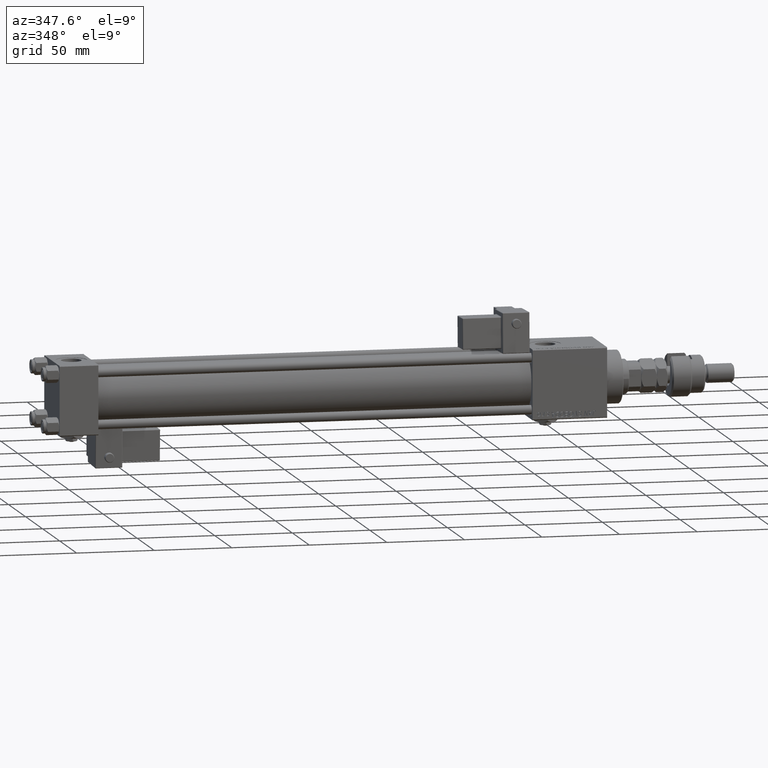
[diagram: clean part render]
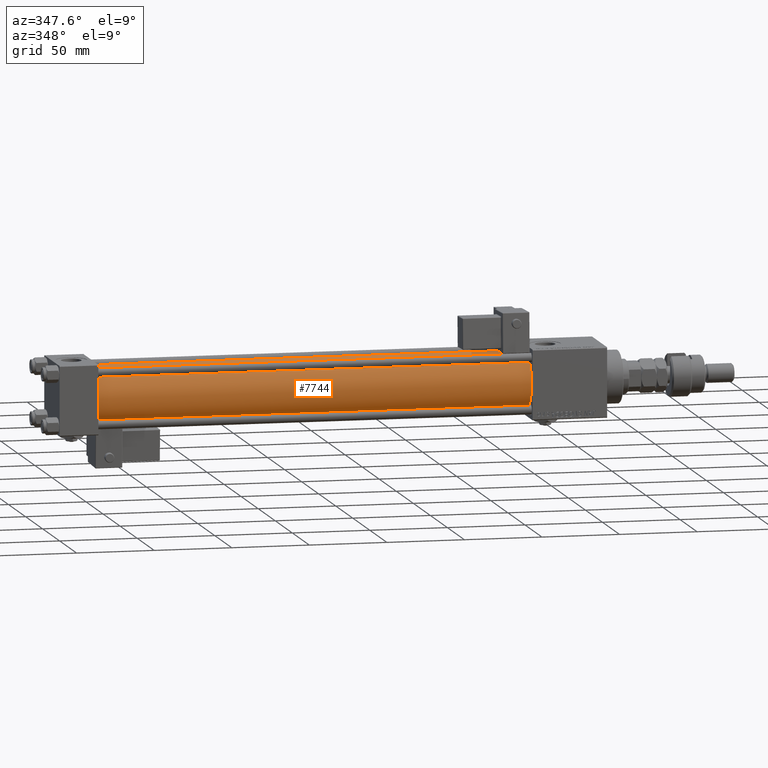
[diagram: same view with one face highlighted and labeled with its STEP entity id]
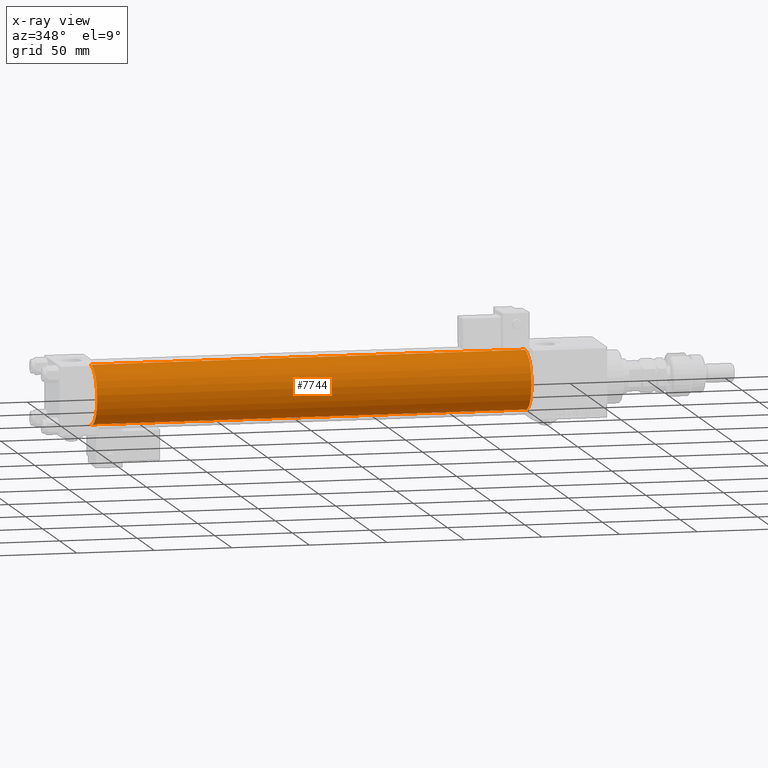
[diagram: x-ray of the same camera — body ghosted, the highlighted face saturated]
A machine part, auxiliary view. The second image highlights one B-rep face of the part: STEP entity #7744.
The next image is the same camera in x-ray: the body ghosted, the highlighted face saturated — about 0% of this face is hidden behind the body in this view.
In plain terms, the highlighted cylindrical surface (edge-blend (fillet) strip) has radius 19 mm, axis along (-1, -0, -0).
Its self-contained STEP definition (entity closure, byte-faithful):
#2431 = CARTESIAN_POINT ( 'NONE',  ( 305.0000000000000568, -2.752562955852396712E-16, -19.00000000000000000 ) ) ;
#2802 = CIRCLE ( 'NONE', #49219, 19.00000000000000000 ) ;
#4915 = ORIENTED_EDGE ( 'NONE', *, *, #40830, .T. ) ;
#5716 = CARTESIAN_POINT ( 'NONE',  ( 25.00000000000002132, -2.752562955852396712E-16, -19.00000000000000000 ) ) ;
#7744 = ADVANCED_FACE ( 'NONE', ( #48055 ), #52984, .T. ) ;
#8480 = DIRECTION ( 'NONE',  ( 0.000000000000000000, 0.000000000000000000, 1.000000000000000000 ) ) ;
#9555 = VECTOR ( 'NONE', #45995, 1000.000000000000000 ) ;
#11617 = VERTEX_POINT ( 'NONE', #5716 ) ;
#14634 = LINE ( 'NONE', #2431, #9555 ) ;
#16632 = CARTESIAN_POINT ( 'NONE',  ( 25.00000000000002132, -2.602085213965210642E-15, 0.000000000000000000 ) ) ;
#18734 = EDGE_CURVE ( 'NONE', #46488, #11617, #2802, .T. ) ;
#20756 = CARTESIAN_POINT ( 'NONE',  ( 305.0000000000000568, -2.602085213965210642E-15, 0.000000000000000000 ) ) ;
#22764 = CARTESIAN_POINT ( 'NONE',  ( 25.00000000000002132, -2.602085213965210642E-15, 19.00000000000000000 ) ) ;
#22905 = VERTEX_POINT ( 'NONE', #37180 ) ;
#23792 = AXIS2_PLACEMENT_3D ( 'NONE', #20756, #38454, #34682 ) ;
#27084 = EDGE_CURVE ( 'NONE', #55387, #11617, #14634, .T. ) ;
#27668 = VECTOR ( 'NONE', #38100, 1000.000000000000000 ) ;
#30965 = ORIENTED_EDGE ( 'NONE', *, *, #41285, .F. ) ;
#31034 = CARTESIAN_POINT ( 'NONE',  ( 305.0000000000000568, -2.602085213965210642E-15, 0.000000000000000000 ) ) ;
#32655 = ORIENTED_EDGE ( 'NONE', *, *, #27084, .F. ) ;
#34342 = DIRECTION ( 'NONE',  ( 1.000000000000000000, -0.000000000000000000, 0.000000000000000000 ) ) ;
#34682 = DIRECTION ( 'NONE',  ( 0.000000000000000000, 0.000000000000000000, 1.000000000000000000 ) ) ;
#36037 = AXIS2_PLACEMENT_3D ( 'NONE', #31034, #57474, #44402 ) ;
#36207 = EDGE_LOOP ( 'NONE', ( #32655, #30965, #4915, #37949 ) ) ;
#37180 = CARTESIAN_POINT ( 'NONE',  ( 305.0000000000000568, -2.602085213965210642E-15, 19.00000000000000000 ) ) ;
#37255 = CARTESIAN_POINT ( 'NONE',  ( 305.0000000000000568, -2.602085213965210642E-15, 19.00000000000000000 ) ) ;
#37949 = ORIENTED_EDGE ( 'NONE', *, *, #18734, .T. ) ;
#38100 = DIRECTION ( 'NONE',  ( -1.000000000000000000, -0.000000000000000000, -0.000000000000000000 ) ) ;
#38454 = DIRECTION ( 'NONE',  ( -1.000000000000000000, -0.000000000000000000, -0.000000000000000000 ) ) ;
#40830 = EDGE_CURVE ( 'NONE', #22905, #46488, #46257, .T. ) ;
#41285 = EDGE_CURVE ( 'NONE', #22905, #55387, #48109, .T. ) ;
#44402 = DIRECTION ( 'NONE',  ( 0.000000000000000000, 0.000000000000000000, -1.000000000000000000 ) ) ;
#45995 = DIRECTION ( 'NONE',  ( -1.000000000000000000, -0.000000000000000000, -0.000000000000000000 ) ) ;
#46257 = LINE ( 'NONE', #37255, #27668 ) ;
#46488 = VERTEX_POINT ( 'NONE', #22764 ) ;
#48055 = FACE_OUTER_BOUND ( 'NONE', #36207, .T. ) ;
#48109 = CIRCLE ( 'NONE', #36037, 19.00000000000000000 ) ;
#49219 = AXIS2_PLACEMENT_3D ( 'NONE', #16632, #34342, #8480 ) ;
#52984 = CYLINDRICAL_SURFACE ( 'NONE', #23792, 19.00000000000000000 ) ;
#55387 = VERTEX_POINT ( 'NONE', #55813 ) ;
#55813 = CARTESIAN_POINT ( 'NONE',  ( 305.0000000000000568, -2.752562955852396712E-16, -19.00000000000000000 ) ) ;
#57474 = DIRECTION ( 'NONE',  ( 1.000000000000000000, 0.000000000000000000, 0.000000000000000000 ) ) ;